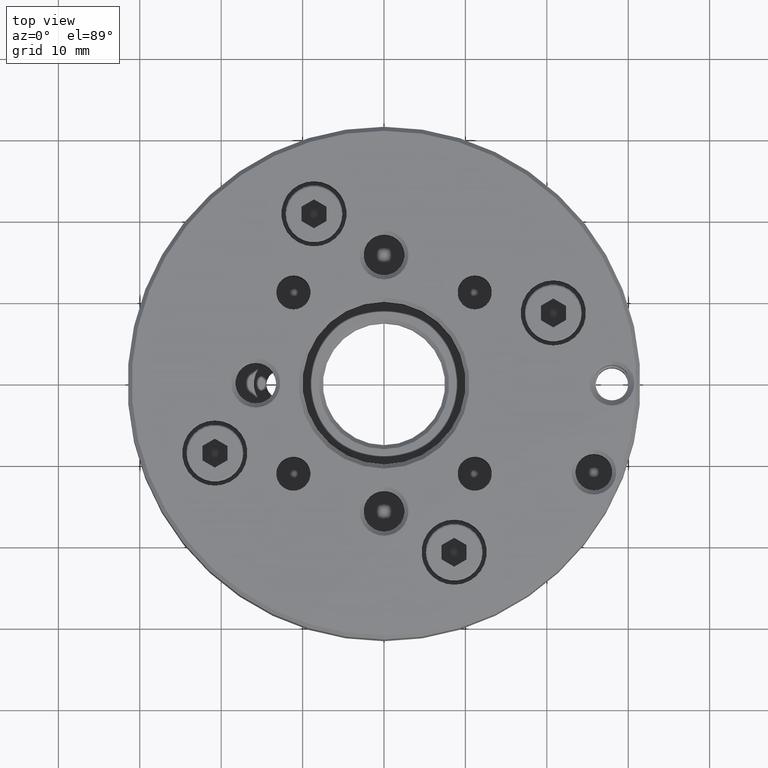
[diagram: clean part render]
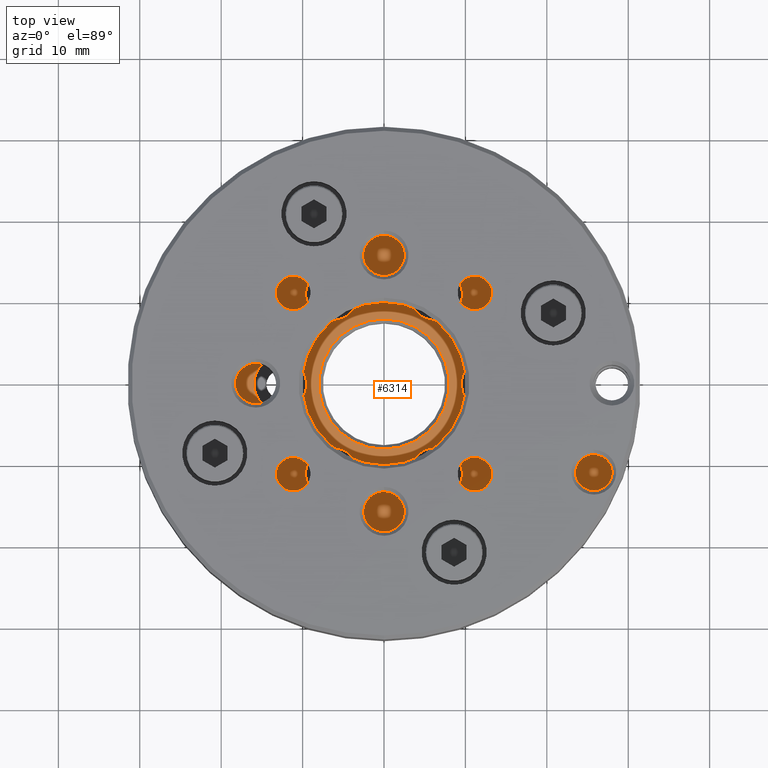
[diagram: same view with one face highlighted and labeled with its STEP entity id]
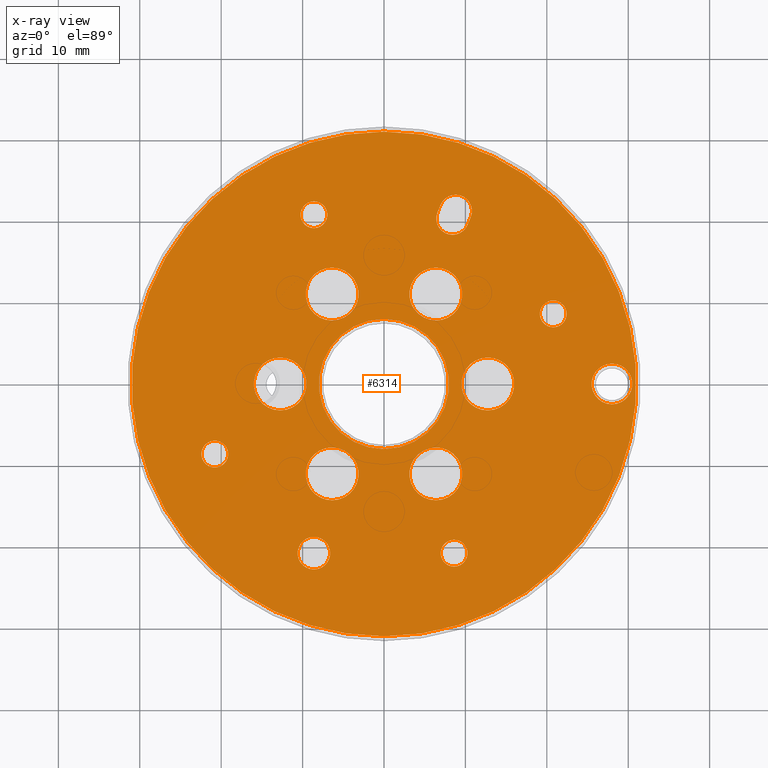
[diagram: x-ray of the same camera — body ghosted, the highlighted face saturated]
A machine part, top view. The second image highlights one B-rep face of the part: STEP entity #6314.
The next image is the same camera in x-ray: the body ghosted, the highlighted face saturated — about 0% of this face is hidden behind the body in this view.
In plain terms, the highlighted planar face has unit normal (-0, -0, 1).
Its self-contained STEP definition (entity closure, byte-faithful):
#11 = CARTESIAN_POINT ( 'NONE',  ( 20.78728948150404321, 8.610377228214352030, 3.122502256758252770E-14 ) ) ;
#27 = EDGE_CURVE ( 'NONE', #606, #2376, #3340, .T. ) ;
#65 = CARTESIAN_POINT ( 'NONE',  ( 8.419035512032099433, 20.32534971524827938, 4.076600168545496672E-14 ) ) ;
#71 = CIRCLE ( 'NONE', #4615, 3.250000000000005329 ) ;
#126 = ORIENTED_EDGE ( 'NONE', *, *, #3434, .T. ) ;
#160 = DIRECTION ( 'NONE',  ( -9.340818716798176512E-15, -1.000000000000000000, -1.654786224869863889E-15 ) ) ;
#167 = VERTEX_POINT ( 'NONE', #533 ) ;
#207 = CARTESIAN_POINT ( 'NONE',  ( 8.610377228214348477, -20.78728948150405742, -2.688821387764050996E-14 ) ) ;
#226 = ORIENTED_EDGE ( 'NONE', *, *, #2072, .T. ) ;
#248 = DIRECTION ( 'NONE',  ( -8.357693029993984519E-16, -1.654786224869864480E-15, 1.000000000000000000 ) ) ;
#253 = VERTEX_POINT ( 'NONE', #3751 ) ;
#270 = AXIS2_PLACEMENT_3D ( 'NONE', #2146, #1666, #6259 ) ;
#281 = AXIS2_PLACEMENT_3D ( 'NONE', #1994, #4015, #880 ) ;
#319 = EDGE_LOOP ( 'NONE', ( #3468, #557 ) ) ;
#346 = EDGE_LOOP ( 'NONE', ( #5875, #2484, #4186, #3357, #126 ) ) ;
#347 = DIRECTION ( 'NONE',  ( -9.462128050782572247E-15, -1.000000000000000000, -1.654786224869863691E-15 ) ) ;
#368 = DIRECTION ( 'NONE',  ( -8.357693029993984519E-16, -1.654786224869864480E-15, 1.000000000000000000 ) ) ;
#370 = CIRCLE ( 'NONE', #5663, 2.500000000000006217 ) ;
#405 = AXIS2_PLACEMENT_3D ( 'NONE', #3378, #5428, #4932 ) ;
#411 = EDGE_CURVE ( 'NONE', #4860, #3400, #1600, .T. ) ;
#419 = DIRECTION ( 'NONE',  ( 8.357693029993984519E-16, 1.654786224869864480E-15, -1.000000000000000000 ) ) ;
#427 = EDGE_CURVE ( 'NONE', #6063, #4425, #2358, .T. ) ;
#428 = CIRCLE ( 'NONE', #4211, 3.250000000000006217 ) ;
#452 = CARTESIAN_POINT ( 'NONE',  ( 8.610377228214348477, -20.78728948150405742, -2.688821387764050996E-14 ) ) ;
#463 = AXIS2_PLACEMENT_3D ( 'NONE', #452, #5561, #347 ) ;
#533 = CARTESIAN_POINT ( 'NONE',  ( 6.571276447009521071, 21.09071657997846572, 4.076600168545496672E-14 ) ) ;
#551 = VERTEX_POINT ( 'NONE', #2058 ) ;
#557 = ORIENTED_EDGE ( 'NONE', *, *, #4823, .F. ) ;
#566 = CARTESIAN_POINT ( 'NONE',  ( -12.75000000000006395, -3.249999999999889866, -1.578639608668790933E-14 ) ) ;
#596 = CARTESIAN_POINT ( 'NONE',  ( -8.610377228214362688, 20.78728948150405031, 2.688821387764050996E-14 ) ) ;
#606 = VERTEX_POINT ( 'NONE', #1042 ) ;
#654 = DIRECTION ( 'NONE',  ( -8.357693029993984519E-16, -1.654786224869864480E-15, 1.000000000000000000 ) ) ;
#663 = CARTESIAN_POINT ( 'NONE',  ( 6.375000000000141220, 14.29182389825154154, 2.879682215651397831E-14 ) ) ;
#675 = DIRECTION ( 'NONE',  ( -8.357693029993984519E-16, -1.654786224869864480E-15, 1.000000000000000000 ) ) ;
#706 = AXIS2_PLACEMENT_3D ( 'NONE', #5058, #419, #1475 ) ;
#726 = CIRCLE ( 'NONE', #4176, 2.000000000000005329 ) ;
#736 = CIRCLE ( 'NONE', #6460, 3.250000000000005329 ) ;
#764 = CARTESIAN_POINT ( 'NONE',  ( 8.610377228214334266, -22.43728948150405955, -2.961861114867578977E-14 ) ) ;
#769 = DIRECTION ( 'NONE',  ( 0.3826834323650969427, 0.9238795325112837409, 1.848658189376066519E-15 ) ) ;
#807 = DIRECTION ( 'NONE',  ( -0.3826834323650974978, -0.9238795325112836299, -1.848658189376067702E-15 ) ) ;
#816 = CARTESIAN_POINT ( 'NONE',  ( 6.375000000000109246, 11.04182389825154154, 2.341876692568689577E-14 ) ) ;
#832 = EDGE_CURVE ( 'NONE', #2621, #4812, #6112, .T. ) ;
#880 = DIRECTION ( 'NONE',  ( -9.367506770274758310E-15, -1.000000000000000000, -1.654786224869864086E-15 ) ) ;
#892 = PLANE ( 'NONE',  #3620 ) ;
#961 = CARTESIAN_POINT ( 'NONE',  ( -8.610377228214646905, -18.78728948150392952, -3.827233668873830652E-14 ) ) ;
#1008 = CARTESIAN_POINT ( 'NONE',  ( -8.267222335452903816E-15, -2.122461707323547068E-15, 0.0000000000000000000 ) ) ;
#1015 = DIRECTION ( 'NONE',  ( -8.673617379883997607E-15, -1.000000000000000000, -1.654786224869864875E-15 ) ) ;
#1037 = CIRCLE ( 'NONE', #4813, 2.000000000000008882 ) ;
#1041 = DIRECTION ( 'NONE',  ( -9.714451465470096063E-15, -1.000000000000000000, -1.654786224869863691E-15 ) ) ;
#1042 = CARTESIAN_POINT ( 'NONE',  ( 6.765254926606325368E-14, 8.000000000000017764, 1.322726650432315409E-14 ) ) ;
#1047 = AXIS2_PLACEMENT_3D ( 'NONE', #6335, #6266, #5213 ) ;
#1056 = CIRCLE ( 'NONE', #1919, 3.250000000000005329 ) ;
#1077 = LINE ( 'NONE', #4288, #1582 ) ;
#1095 = DIRECTION ( 'NONE',  ( -8.357693029993984519E-16, -1.654786224869864480E-15, 1.000000000000000000 ) ) ;
#1110 = DIRECTION ( 'NONE',  ( -8.357693029993984519E-16, -1.654786224869864480E-15, 1.000000000000000000 ) ) ;
#1111 = VERTEX_POINT ( 'NONE', #6599 ) ;
#1125 = VERTEX_POINT ( 'NONE', #961 ) ;
#1170 = AXIS2_PLACEMENT_3D ( 'NONE', #11, #4682, #3602 ) ;
#1171 = CARTESIAN_POINT ( 'NONE',  ( -20.78728948150406808, -10.26037722821436127, -3.395541983861780750E-14 ) ) ;
#1173 = VERTEX_POINT ( 'NONE', #2572 ) ;
#1174 = LINE ( 'NONE', #2827, #5716 ) ;
#1186 = CARTESIAN_POINT ( 'NONE',  ( 12.75000000000001243, -1.215581730283268047E-13, 1.040834085586084257E-14 ) ) ;
#1193 = ORIENTED_EDGE ( 'NONE', *, *, #2591, .F. ) ;
#1201 = FACE_BOUND ( 'NONE', #1381, .T. ) ;
#1221 = CARTESIAN_POINT ( 'NONE',  ( -20.78728948150405742, -8.610377228214359135, -3.122502256758252770E-14 ) ) ;
#1248 = CIRCLE ( 'NONE', #1353, 3.250000000000004441 ) ;
#1294 = CARTESIAN_POINT ( 'NONE',  ( 20.78728948150406097, 10.26037722821435061, 3.395541983861781381E-14 ) ) ;
#1308 = EDGE_CURVE ( 'NONE', #2830, #1488, #370, .T. ) ;
#1313 = VERTEX_POINT ( 'NONE', #566 ) ;
#1316 = VERTEX_POINT ( 'NONE', #4740 ) ;
#1320 = EDGE_CURVE ( 'NONE', #4812, #2621, #1248, .T. ) ;
#1353 = AXIS2_PLACEMENT_3D ( 'NONE', #5271, #675, #5233 ) ;
#1354 = ORIENTED_EDGE ( 'NONE', *, *, #3300, .T. ) ;
#1381 = EDGE_LOOP ( 'NONE', ( #3739, #5717 ) ) ;
#1409 = ORIENTED_EDGE ( 'NONE', *, *, #5706, .F. ) ;
#1428 = EDGE_LOOP ( 'NONE', ( #5959, #6205 ) ) ;
#1445 = CIRCLE ( 'NONE', #463, 1.650000000000002132 ) ;
#1475 = DIRECTION ( 'NONE',  ( -9.540979117872413776E-15, -1.000000000000000000, -1.654786224869864677E-15 ) ) ;
#1488 = VERTEX_POINT ( 'NONE', #2369 ) ;
#1505 = DIRECTION ( 'NONE',  ( -9.367506770274759888E-15, -1.000000000000000000, -1.654786224869863889E-15 ) ) ;
#1578 = CARTESIAN_POINT ( 'NONE',  ( 28.00000000000004263, -2.653065047338837178E-13, 2.341876692568689577E-14 ) ) ;
#1582 = VECTOR ( 'NONE', #807, 999.9999999999998863 ) ;
#1600 = CIRCLE ( 'NONE', #3334, 3.250000000000005329 ) ;
#1601 = EDGE_LOOP ( 'NONE', ( #3745, #3337 ) ) ;
#1613 = CARTESIAN_POINT ( 'NONE',  ( 10.64947800941977363, 20.48386238302938267, 4.250072516143177381E-14 ) ) ;
#1638 = CARTESIAN_POINT ( 'NONE',  ( 6.375000000000078160, 7.791823898251536207, 1.804071169485982902E-14 ) ) ;
#1646 = EDGE_LOOP ( 'NONE', ( #4331, #2540 ) ) ;
#1662 = DIRECTION ( 'NONE',  ( -8.357693029993984519E-16, -1.654786224869864480E-15, 1.000000000000000000 ) ) ;
#1666 = DIRECTION ( 'NONE',  ( -8.357693029993984519E-16, -1.654786224869864480E-15, 1.000000000000000000 ) ) ;
#1706 = AXIS2_PLACEMENT_3D ( 'NONE', #4772, #1662, #5774 ) ;
#1723 = VERTEX_POINT ( 'NONE', #4761 ) ;
#1745 = DIRECTION ( 'NONE',  ( -9.367506770274758310E-15, -1.000000000000000000, -1.654786224869864086E-15 ) ) ;
#1767 = CARTESIAN_POINT ( 'NONE',  ( 6.374999999999934275, -7.791823898251665881, -7.632370838998964361E-15 ) ) ;
#1867 = CARTESIAN_POINT ( 'NONE',  ( -6.375000000000088818, -7.791823898251549529, -1.804071169485981008E-14 ) ) ;
#1878 = FACE_BOUND ( 'NONE', #3444, .T. ) ;
#1913 = DIRECTION ( 'NONE',  ( -9.462128050782572247E-15, -1.000000000000000000, -1.654786224869863691E-15 ) ) ;
#1919 = AXIS2_PLACEMENT_3D ( 'NONE', #816, #5944, #2773 ) ;
#1924 = DIRECTION ( 'NONE',  ( -9.367506770274758310E-15, -1.000000000000000000, -1.654786224869864086E-15 ) ) ;
#1945 = AXIS2_PLACEMENT_3D ( 'NONE', #3330, #4412, #1745 ) ;
#1954 = EDGE_CURVE ( 'NONE', #3794, #6268, #1445, .T. ) ;
#1994 = CARTESIAN_POINT ( 'NONE',  ( -8.267222335452903816E-15, -2.122461707323547068E-15, 0.0000000000000000000 ) ) ;
#2001 = EDGE_LOOP ( 'NONE', ( #2282, #5184 ) ) ;
#2007 = CARTESIAN_POINT ( 'NONE',  ( -8.320727649765115173E-14, -8.000000000000021316, -1.322726650432315409E-14 ) ) ;
#2013 = CIRCLE ( 'NONE', #6649, 2.000000000000008882 ) ;
#2036 = AXIS2_PLACEMENT_3D ( 'NONE', #4993, #6552, #1924 ) ;
#2037 = AXIS2_PLACEMENT_3D ( 'NONE', #2406, #3926, #6501 ) ;
#2058 = CARTESIAN_POINT ( 'NONE',  ( -2.969658453334543374E-13, -31.00000000000001776, -5.129837297096606513E-14 ) ) ;
#2072 = EDGE_CURVE ( 'NONE', #551, #1173, #4684, .T. ) ;
#2108 = CIRCLE ( 'NONE', #706, 2.000000000000005329 ) ;
#2118 = DIRECTION ( 'NONE',  ( 8.357693029993984519E-16, 1.654786224869864480E-15, -1.000000000000000000 ) ) ;
#2141 = CIRCLE ( 'NONE', #2036, 31.00000000000006395 ) ;
#2143 = DIRECTION ( 'NONE',  ( 8.357693029993984519E-16, 1.654786224869864480E-15, -1.000000000000000000 ) ) ;
#2146 = CARTESIAN_POINT ( 'NONE',  ( -6.375000000000121680, -11.04182389825154864, -2.341876692568689577E-14 ) ) ;
#2147 = CARTESIAN_POINT ( 'NONE',  ( -6.375000000000151879, -14.29182389825155397, -2.879682215651395938E-14 ) ) ;
#2173 = CARTESIAN_POINT ( 'NONE',  ( 28.00000000000004263, -2.653065047338837178E-13, 2.341876692568689577E-14 ) ) ;
#2194 = CARTESIAN_POINT ( 'NONE',  ( 8.801718944397196154, 21.24922924775956545, 4.250072516143177381E-14 ) ) ;
#2250 = FACE_BOUND ( 'NONE', #3705, .T. ) ;
#2259 = DIRECTION ( 'NONE',  ( -9.340818716798176512E-15, -1.000000000000000000, -1.654786224869863889E-15 ) ) ;
#2280 = FACE_BOUND ( 'NONE', #5308, .T. ) ;
#2282 = ORIENTED_EDGE ( 'NONE', *, *, #411, .F. ) ;
#2339 = ORIENTED_EDGE ( 'NONE', *, *, #27, .T. ) ;
#2358 = CIRCLE ( 'NONE', #405, 1.650000000000002132 ) ;
#2364 = CARTESIAN_POINT ( 'NONE',  ( 20.78728948150402900, 6.960377228214351675, 2.849462529654724790E-14 ) ) ;
#2369 = CARTESIAN_POINT ( 'NONE',  ( 28.00000000000002132, -2.500000000000271339, 1.919037845299342848E-14 ) ) ;
#2376 = VERTEX_POINT ( 'NONE', #2007 ) ;
#2397 = EDGE_CURVE ( 'NONE', #1313, #2898, #3502, .T. ) ;
#2406 = CARTESIAN_POINT ( 'NONE',  ( 12.75000000000001243, -1.215581730283268047E-13, 1.040834085586084257E-14 ) ) ;
#2424 = CARTESIAN_POINT ( 'NONE',  ( 6.375000000000109246, 11.04182389825154154, 2.341876692568689577E-14 ) ) ;
#2433 = CARTESIAN_POINT ( 'NONE',  ( -8.610377228214684209, -22.78728948150394373, -4.499439015814843401E-14 ) ) ;
#2434 = EDGE_CURVE ( 'NONE', #1125, #2848, #726, .T. ) ;
#2438 = EDGE_LOOP ( 'NONE', ( #5388, #6325 ) ) ;
#2447 = DIRECTION ( 'NONE',  ( -8.357693029993983533E-16, -1.654786224869856000E-15, 1.000000000000000000 ) ) ;
#2467 = CARTESIAN_POINT ( 'NONE',  ( 28.00000000000006395, 2.499999999999740652, 2.764715539838036307E-14 ) ) ;
#2484 = ORIENTED_EDGE ( 'NONE', *, *, #2983, .T. ) ;
#2540 = ORIENTED_EDGE ( 'NONE', *, *, #832, .F. ) ;
#2572 = CARTESIAN_POINT ( 'NONE',  ( 2.846763065613837133E-13, 31.00000000000001066, 5.129837297096606513E-14 ) ) ;
#2591 = EDGE_CURVE ( 'NONE', #3081, #5423, #3323, .T. ) ;
#2595 = DIRECTION ( 'NONE',  ( -9.462128050782572247E-15, -1.000000000000000000, -1.654786224869863691E-15 ) ) ;
#2621 = VERTEX_POINT ( 'NONE', #1867 ) ;
#2632 = VERTEX_POINT ( 'NONE', #5946 ) ;
#2667 = AXIS2_PLACEMENT_3D ( 'NONE', #1186, #1110, #4736 ) ;
#2749 = CIRCLE ( 'NONE', #5767, 2.000000000000008882 ) ;
#2755 = EDGE_CURVE ( 'NONE', #4425, #6063, #3422, .T. ) ;
#2767 = CARTESIAN_POINT ( 'NONE',  ( 6.953959879374625785, 22.01459611248976955, 4.250072516143177381E-14 ) ) ;
#2773 = DIRECTION ( 'NONE',  ( -9.340818716798176512E-15, -1.000000000000000000, -1.654786224869863889E-15 ) ) ;
#2827 = CARTESIAN_POINT ( 'NONE',  ( -1.847759065022618774, 0.7653668647302095396, 0.0000000000000000000 ) ) ;
#2830 = VERTEX_POINT ( 'NONE', #2467 ) ;
#2848 = VERTEX_POINT ( 'NONE', #2433 ) ;
#2898 = VERTEX_POINT ( 'NONE', #3246 ) ;
#2956 = FACE_BOUND ( 'NONE', #2001, .T. ) ;
#2983 = EDGE_CURVE ( 'NONE', #3310, #4564, #1077, .T. ) ;
#2992 = DIRECTION ( 'NONE',  ( 8.357693029993984519E-16, 1.654786224869864480E-15, -1.000000000000000000 ) ) ;
#3010 = CIRCLE ( 'NONE', #1170, 1.650000000000001243 ) ;
#3021 = ORIENTED_EDGE ( 'NONE', *, *, #3276, .F. ) ;
#3060 = CARTESIAN_POINT ( 'NONE',  ( 8.610377228214366241, -19.13728948150405884, -2.415781660660522069E-14 ) ) ;
#3064 = ORIENTED_EDGE ( 'NONE', *, *, #1954, .F. ) ;
#3081 = VERTEX_POINT ( 'NONE', #2364 ) ;
#3087 = VERTEX_POINT ( 'NONE', #2767 ) ;
#3088 = DIRECTION ( 'NONE',  ( -9.540979117872413776E-15, -1.000000000000000000, -1.654786224869864677E-15 ) ) ;
#3097 = CIRCLE ( 'NONE', #1047, 1.650000000000002132 ) ;
#3216 = DIRECTION ( 'NONE',  ( 8.357693029993984519E-16, 1.654786224869864480E-15, -1.000000000000000000 ) ) ;
#3217 = DIRECTION ( 'NONE',  ( -9.340818716798174935E-15, -1.000000000000000000, -1.654786224869863494E-15 ) ) ;
#3224 = DIRECTION ( 'NONE',  ( -1.040834085586079681E-14, -1.000000000000000000, -1.654786224869864875E-15 ) ) ;
#3238 = EDGE_LOOP ( 'NONE', ( #1193, #3021 ) ) ;
#3243 = EDGE_CURVE ( 'NONE', #1173, #551, #2141, .T. ) ;
#3245 = VERTEX_POINT ( 'NONE', #6041 ) ;
#3246 = CARTESIAN_POINT ( 'NONE',  ( -12.75000000000000000, 3.250000000000115907, -5.030285625033755297E-15 ) ) ;
#3276 = EDGE_CURVE ( 'NONE', #5423, #3081, #3010, .T. ) ;
#3295 = FACE_BOUND ( 'NONE', #6176, .T. ) ;
#3300 = EDGE_CURVE ( 'NONE', #1488, #2830, #5802, .T. ) ;
#3310 = VERTEX_POINT ( 'NONE', #1613 ) ;
#3323 = CIRCLE ( 'NONE', #1706, 1.650000000000001243 ) ;
#3330 = CARTESIAN_POINT ( 'NONE',  ( -8.267222335452903816E-15, -2.122461707323547068E-15, 0.0000000000000000000 ) ) ;
#3334 = AXIS2_PLACEMENT_3D ( 'NONE', #2424, #248, #6515 ) ;
#3337 = ORIENTED_EDGE ( 'NONE', *, *, #4159, .F. ) ;
#3340 = CIRCLE ( 'NONE', #1945, 8.000000000000019540 ) ;
#3357 = ORIENTED_EDGE ( 'NONE', *, *, #6374, .T. ) ;
#3378 = CARTESIAN_POINT ( 'NONE',  ( -20.78728948150405742, -8.610377228214359135, -3.122502256758252770E-14 ) ) ;
#3400 = VERTEX_POINT ( 'NONE', #663 ) ;
#3422 = CIRCLE ( 'NONE', #6131, 1.650000000000002132 ) ;
#3434 = EDGE_CURVE ( 'NONE', #167, #3087, #1174, .T. ) ;
#3440 = VERTEX_POINT ( 'NONE', #4853 ) ;
#3444 = EDGE_LOOP ( 'NONE', ( #4635, #2339 ) ) ;
#3453 = DIRECTION ( 'NONE',  ( -8.410780489584509014E-15, -1.000000000000000000, -1.654786224869863691E-15 ) ) ;
#3468 = ORIENTED_EDGE ( 'NONE', *, *, #2397, .F. ) ;
#3502 = CIRCLE ( 'NONE', #4366, 3.250000000000005329 ) ;
#3528 = CARTESIAN_POINT ( 'NONE',  ( -8.267222335452903816E-15, -2.122461707323547068E-15, 0.0000000000000000000 ) ) ;
#3564 = DIRECTION ( 'NONE',  ( -9.540979117872396421E-15, -1.000000000000000000, -1.654786224869864875E-15 ) ) ;
#3602 = DIRECTION ( 'NONE',  ( -8.410780489584512170E-15, -1.000000000000000000, -1.654786224869864677E-15 ) ) ;
#3606 = AXIS2_PLACEMENT_3D ( 'NONE', #1008, #5243, #6290 ) ;
#3613 = CIRCLE ( 'NONE', #5334, 3.250000000000005329 ) ;
#3620 = AXIS2_PLACEMENT_3D ( 'NONE', #3528, #2447, #1505 ) ;
#3632 = CIRCLE ( 'NONE', #5679, 1.650000000000002132 ) ;
#3675 = EDGE_CURVE ( 'NONE', #1316, #6585, #428, .T. ) ;
#3694 = DIRECTION ( 'NONE',  ( -9.607699251563838293E-15, -1.000000000000000000, -1.654786224869863889E-15 ) ) ;
#3705 = EDGE_LOOP ( 'NONE', ( #1354, #4995 ) ) ;
#3725 = AXIS2_PLACEMENT_3D ( 'NONE', #596, #5222, #2595 ) ;
#3739 = ORIENTED_EDGE ( 'NONE', *, *, #2755, .F. ) ;
#3745 = ORIENTED_EDGE ( 'NONE', *, *, #5039, .F. ) ;
#3751 = CARTESIAN_POINT ( 'NONE',  ( -6.374999999999890754, 14.29182389825165878, 1.838848130065314206E-14 ) ) ;
#3767 = AXIS2_PLACEMENT_3D ( 'NONE', #5201, #5810, #3217 ) ;
#3792 = DIRECTION ( 'NONE',  ( -8.357693029993984519E-16, -1.654786224869864480E-15, 1.000000000000000000 ) ) ;
#3794 = VERTEX_POINT ( 'NONE', #3060 ) ;
#3804 = FACE_OUTER_BOUND ( 'NONE', #4458, .T. ) ;
#3821 = DIRECTION ( 'NONE',  ( -8.357693029993984519E-16, -1.654786224869864480E-15, 1.000000000000000000 ) ) ;
#3926 = DIRECTION ( 'NONE',  ( -8.357693029993984519E-16, -1.654786224869864480E-15, 1.000000000000000000 ) ) ;
#3968 = AXIS2_PLACEMENT_3D ( 'NONE', #1578, #2118, #1041 ) ;
#3995 = DIRECTION ( 'NONE',  ( -9.607699251563838293E-15, -1.000000000000000000, -1.654786224869863889E-15 ) ) ;
#4015 = DIRECTION ( 'NONE',  ( 8.357693029993984519E-16, 1.654786224869864480E-15, -1.000000000000000000 ) ) ;
#4133 = DIRECTION ( 'NONE',  ( -9.340818716798174935E-15, -1.000000000000000000, -1.654786224869863494E-15 ) ) ;
#4159 = EDGE_CURVE ( 'NONE', #4756, #3245, #6447, .T. ) ;
#4176 = AXIS2_PLACEMENT_3D ( 'NONE', #5542, #6058, #3088 ) ;
#4186 = ORIENTED_EDGE ( 'NONE', *, *, #6572, .T. ) ;
#4211 = AXIS2_PLACEMENT_3D ( 'NONE', #6229, #1095, #4133 ) ;
#4251 = DIRECTION ( 'NONE',  ( 8.357693029993984519E-16, 1.654786224869864480E-15, -1.000000000000000000 ) ) ;
#4288 = CARTESIAN_POINT ( 'NONE',  ( 1.847759065022519520, -0.7653668647301808958, 0.0000000000000000000 ) ) ;
#4331 = ORIENTED_EDGE ( 'NONE', *, *, #1320, .F. ) ;
#4338 = FACE_BOUND ( 'NONE', #1646, .T. ) ;
#4366 = AXIS2_PLACEMENT_3D ( 'NONE', #4508, #368, #3995 ) ;
#4412 = DIRECTION ( 'NONE',  ( 8.357693029993984519E-16, 1.654786224869864480E-15, -1.000000000000000000 ) ) ;
#4425 = VERTEX_POINT ( 'NONE', #1171 ) ;
#4448 = FACE_BOUND ( 'NONE', #1428, .T. ) ;
#4458 = EDGE_LOOP ( 'NONE', ( #5376, #226 ) ) ;
#4468 = EDGE_CURVE ( 'NONE', #1723, #1111, #3097, .T. ) ;
#4476 = FACE_BOUND ( 'NONE', #319, .T. ) ;
#4508 = CARTESIAN_POINT ( 'NONE',  ( -12.75000000000003197, 1.155785261377029523E-13, -1.040834085586084257E-14 ) ) ;
#4564 = VERTEX_POINT ( 'NONE', #5351 ) ;
#4577 = CARTESIAN_POINT ( 'NONE',  ( 12.75000000000004619, 3.249999999999878764, 1.578639608668793141E-14 ) ) ;
#4601 = EDGE_CURVE ( 'NONE', #6268, #3794, #3632, .T. ) ;
#4615 = AXIS2_PLACEMENT_3D ( 'NONE', #6461, #3821, #160 ) ;
#4635 = ORIENTED_EDGE ( 'NONE', *, *, #5620, .T. ) ;
#4682 = DIRECTION ( 'NONE',  ( -8.357693029993984519E-16, -1.654786224869864480E-15, 1.000000000000000000 ) ) ;
#4684 = CIRCLE ( 'NONE', #3606, 31.00000000000006395 ) ;
#4736 = DIRECTION ( 'NONE',  ( -9.607699251563838293E-15, -1.000000000000000000, -1.654786224869863889E-15 ) ) ;
#4740 = CARTESIAN_POINT ( 'NONE',  ( 6.374999999999871214, -14.29182389825167299, -1.838848130065311997E-14 ) ) ;
#4756 = VERTEX_POINT ( 'NONE', #4577 ) ;
#4761 = CARTESIAN_POINT ( 'NONE',  ( -8.610377228214344925, 22.43728948150404889, 2.961861114867579608E-14 ) ) ;
#4772 = CARTESIAN_POINT ( 'NONE',  ( 20.78728948150404321, 8.610377228214352030, 3.122502256758252770E-14 ) ) ;
#4812 = VERTEX_POINT ( 'NONE', #2147 ) ;
#4813 = AXIS2_PLACEMENT_3D ( 'NONE', #6061, #2992, #3564 ) ;
#4823 = EDGE_CURVE ( 'NONE', #2898, #1313, #736, .T. ) ;
#4825 = CARTESIAN_POINT ( 'NONE',  ( -6.374999999999923617, 11.04182389825166055, 1.301042606982605321E-14 ) ) ;
#4853 = CARTESIAN_POINT ( 'NONE',  ( -6.374999999999953815, 7.791823898251654335, 7.632370838998986449E-15 ) ) ;
#4860 = VERTEX_POINT ( 'NONE', #1638 ) ;
#4932 = DIRECTION ( 'NONE',  ( -8.410780489584509014E-15, -1.000000000000000000, -1.654786224869863691E-15 ) ) ;
#4993 = CARTESIAN_POINT ( 'NONE',  ( -8.267222335452903816E-15, -2.122461707323547068E-15, 0.0000000000000000000 ) ) ;
#4995 = ORIENTED_EDGE ( 'NONE', *, *, #1308, .T. ) ;
#5022 = ORIENTED_EDGE ( 'NONE', *, *, #4468, .F. ) ;
#5039 = EDGE_CURVE ( 'NONE', #3245, #4756, #6027, .T. ) ;
#5040 = EDGE_LOOP ( 'NONE', ( #5096, #3064 ) ) ;
#5058 = CARTESIAN_POINT ( 'NONE',  ( -8.610377228214664669, -20.78728948150393308, -4.163336342344337027E-14 ) ) ;
#5096 = ORIENTED_EDGE ( 'NONE', *, *, #4601, .F. ) ;
#5184 = ORIENTED_EDGE ( 'NONE', *, *, #5415, .F. ) ;
#5201 = CARTESIAN_POINT ( 'NONE',  ( 6.374999999999901412, -11.04182389825166588, -1.301042606982605321E-14 ) ) ;
#5213 = DIRECTION ( 'NONE',  ( -9.462128050782572247E-15, -1.000000000000000000, -1.654786224869863691E-15 ) ) ;
#5222 = DIRECTION ( 'NONE',  ( -8.357693029993984519E-16, -1.654786224869864480E-15, 1.000000000000000000 ) ) ;
#5233 = DIRECTION ( 'NONE',  ( -9.340818716798179668E-15, -1.000000000000000000, -1.654786224869864480E-15 ) ) ;
#5243 = DIRECTION ( 'NONE',  ( -8.357693029993984519E-16, -1.654786224869864480E-15, 1.000000000000000000 ) ) ;
#5256 = CIRCLE ( 'NONE', #281, 8.000000000000019540 ) ;
#5262 = ORIENTED_EDGE ( 'NONE', *, *, #5301, .F. ) ;
#5271 = CARTESIAN_POINT ( 'NONE',  ( -6.375000000000121680, -11.04182389825154864, -2.341876692568689577E-14 ) ) ;
#5301 = EDGE_CURVE ( 'NONE', #6585, #1316, #5808, .T. ) ;
#5303 = DIRECTION ( 'NONE',  ( -9.714451465470096063E-15, -1.000000000000000000, -1.654786224869864875E-15 ) ) ;
#5308 = EDGE_LOOP ( 'NONE', ( #5974, #5262 ) ) ;
#5334 = AXIS2_PLACEMENT_3D ( 'NONE', #4825, #5800, #2259 ) ;
#5349 = FACE_BOUND ( 'NONE', #1601, .T. ) ;
#5351 = CARTESIAN_POINT ( 'NONE',  ( 10.26679457705467335, 19.55998285051808949, 4.076600168545496672E-14 ) ) ;
#5376 = ORIENTED_EDGE ( 'NONE', *, *, #3243, .T. ) ;
#5388 = ORIENTED_EDGE ( 'NONE', *, *, #5976, .F. ) ;
#5415 = EDGE_CURVE ( 'NONE', #3400, #4860, #1056, .T. ) ;
#5418 = DIRECTION ( 'NONE',  ( -8.357693029993984519E-16, -1.654786224869864480E-15, 1.000000000000000000 ) ) ;
#5423 = VERTEX_POINT ( 'NONE', #1294 ) ;
#5428 = DIRECTION ( 'NONE',  ( -8.357693029993984519E-16, -1.654786224869864480E-15, 1.000000000000000000 ) ) ;
#5508 = EDGE_CURVE ( 'NONE', #253, #3440, #71, .T. ) ;
#5516 = FACE_BOUND ( 'NONE', #2438, .T. ) ;
#5542 = CARTESIAN_POINT ( 'NONE',  ( -8.610377228214664669, -20.78728948150393308, -4.163336342344337027E-14 ) ) ;
#5561 = DIRECTION ( 'NONE',  ( -8.357693029993984519E-16, -1.654786224869864480E-15, 1.000000000000000000 ) ) ;
#5595 = CARTESIAN_POINT ( 'NONE',  ( -20.78728948150403966, -6.960377228214360557, -2.849462529654724158E-14 ) ) ;
#5620 = EDGE_CURVE ( 'NONE', #2376, #606, #5256, .T. ) ;
#5663 = AXIS2_PLACEMENT_3D ( 'NONE', #2173, #3216, #5303 ) ;
#5679 = AXIS2_PLACEMENT_3D ( 'NONE', #207, #5418, #1913 ) ;
#5706 = EDGE_CURVE ( 'NONE', #1111, #1723, #6422, .T. ) ;
#5716 = VECTOR ( 'NONE', #769, 1000.000000000000114 ) ;
#5717 = ORIENTED_EDGE ( 'NONE', *, *, #427, .F. ) ;
#5767 = AXIS2_PLACEMENT_3D ( 'NONE', #2194, #4251, #1015 ) ;
#5774 = DIRECTION ( 'NONE',  ( -8.410780489584512170E-15, -1.000000000000000000, -1.654786224869864677E-15 ) ) ;
#5777 = EDGE_CURVE ( 'NONE', #3087, #3310, #2749, .T. ) ;
#5782 = CARTESIAN_POINT ( 'NONE',  ( -12.75000000000003197, 1.155785261377029523E-13, -1.040834085586084257E-14 ) ) ;
#5800 = DIRECTION ( 'NONE',  ( -8.357693029993984519E-16, -1.654786224869864480E-15, 1.000000000000000000 ) ) ;
#5802 = CIRCLE ( 'NONE', #3968, 2.500000000000006217 ) ;
#5808 = CIRCLE ( 'NONE', #3767, 3.250000000000006217 ) ;
#5810 = DIRECTION ( 'NONE',  ( -8.357693029993984519E-16, -1.654786224869864480E-15, 1.000000000000000000 ) ) ;
#5824 = FACE_BOUND ( 'NONE', #3238, .T. ) ;
#5852 = FACE_BOUND ( 'NONE', #5040, .T. ) ;
#5875 = ORIENTED_EDGE ( 'NONE', *, *, #5777, .T. ) ;
#5944 = DIRECTION ( 'NONE',  ( -8.357693029993984519E-16, -1.654786224869864480E-15, 1.000000000000000000 ) ) ;
#5946 = CARTESIAN_POINT ( 'NONE',  ( 8.419035512032079893, 18.32534971524826872, 3.740497495074990297E-14 ) ) ;
#5959 = ORIENTED_EDGE ( 'NONE', *, *, #6107, .T. ) ;
#5974 = ORIENTED_EDGE ( 'NONE', *, *, #3675, .F. ) ;
#5976 = EDGE_CURVE ( 'NONE', #3440, #253, #3613, .T. ) ;
#6027 = CIRCLE ( 'NONE', #2037, 3.250000000000005329 ) ;
#6041 = CARTESIAN_POINT ( 'NONE',  ( 12.74999999999998224, -3.250000000000127010, 5.030285625033775807E-15 ) ) ;
#6058 = DIRECTION ( 'NONE',  ( 8.357693029993984519E-16, 1.654786224869864480E-15, -1.000000000000000000 ) ) ;
#6061 = CARTESIAN_POINT ( 'NONE',  ( 8.419035512032099433, 20.32534971524827938, 4.076600168545496672E-14 ) ) ;
#6063 = VERTEX_POINT ( 'NONE', #5595 ) ;
#6107 = EDGE_CURVE ( 'NONE', #2848, #1125, #2108, .T. ) ;
#6112 = CIRCLE ( 'NONE', #270, 3.250000000000004441 ) ;
#6131 = AXIS2_PLACEMENT_3D ( 'NONE', #1221, #3792, #3453 ) ;
#6176 = EDGE_LOOP ( 'NONE', ( #1409, #5022 ) ) ;
#6205 = ORIENTED_EDGE ( 'NONE', *, *, #2434, .T. ) ;
#6229 = CARTESIAN_POINT ( 'NONE',  ( 6.374999999999901412, -11.04182389825166588, -1.301042606982605321E-14 ) ) ;
#6259 = DIRECTION ( 'NONE',  ( -9.340818716798179668E-15, -1.000000000000000000, -1.654786224869864480E-15 ) ) ;
#6266 = DIRECTION ( 'NONE',  ( -8.357693029993984519E-16, -1.654786224869864480E-15, 1.000000000000000000 ) ) ;
#6268 = VERTEX_POINT ( 'NONE', #764 ) ;
#6290 = DIRECTION ( 'NONE',  ( -9.367506770274758310E-15, -1.000000000000000000, -1.654786224869864086E-15 ) ) ;
#6314 = ADVANCED_FACE ( 'NONE', ( #4448, #6505, #2250, #1878, #3804, #5824, #5852, #1201, #3295, #5349, #2280, #4338, #4476, #5516, #2956 ), #892, .T. ) ;
#6325 = ORIENTED_EDGE ( 'NONE', *, *, #5508, .F. ) ;
#6335 = CARTESIAN_POINT ( 'NONE',  ( -8.610377228214362688, 20.78728948150405031, 2.688821387764050996E-14 ) ) ;
#6374 = EDGE_CURVE ( 'NONE', #2632, #167, #1037, .T. ) ;
#6422 = CIRCLE ( 'NONE', #3725, 1.650000000000002132 ) ;
#6447 = CIRCLE ( 'NONE', #2667, 3.250000000000005329 ) ;
#6460 = AXIS2_PLACEMENT_3D ( 'NONE', #5782, #654, #3694 ) ;
#6461 = CARTESIAN_POINT ( 'NONE',  ( -6.374999999999923617, 11.04182389825166055, 1.301042606982605321E-14 ) ) ;
#6501 = DIRECTION ( 'NONE',  ( -9.607699251563838293E-15, -1.000000000000000000, -1.654786224869863889E-15 ) ) ;
#6505 = FACE_BOUND ( 'NONE', #346, .T. ) ;
#6515 = DIRECTION ( 'NONE',  ( -9.340818716798176512E-15, -1.000000000000000000, -1.654786224869863889E-15 ) ) ;
#6552 = DIRECTION ( 'NONE',  ( -8.357693029993984519E-16, -1.654786224869864480E-15, 1.000000000000000000 ) ) ;
#6572 = EDGE_CURVE ( 'NONE', #4564, #2632, #2013, .T. ) ;
#6585 = VERTEX_POINT ( 'NONE', #1767 ) ;
#6599 = CARTESIAN_POINT ( 'NONE',  ( -8.610377228214378675, 19.13728948150404818, 2.415781660660523016E-14 ) ) ;
#6649 = AXIS2_PLACEMENT_3D ( 'NONE', #65, #2143, #3224 ) ;